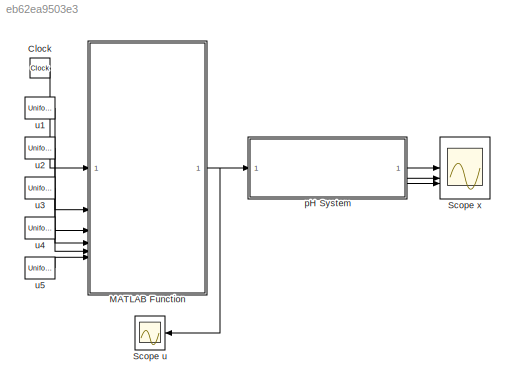
MODEL slx_eb62ea9503e3
KIND model
CONFIG AbsTol = auto
CONFIG EnableMultiTasking = off
CONFIG FixedStep = auto
CONFIG MaxStep = auto
CONFIG MinStep = auto
CONFIG RelTol = 1e-3
CONFIG SampleTimeConstraint = Unconstrained
CONFIG SolverName = ode45
CONFIG StartTime = 0.0
CONFIG StopTime = 120000
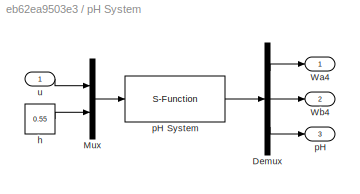
BLOCK [SubSystem]  pH System 
BLOCK [Constant]  pH System / h 
  Value = 0.55
BLOCK [Demux]  pH System /Demux
  Outputs = 3
BLOCK [Mux]  pH System /Mux
  DisplayOption = bar
  Inputs = 2
BLOCK [Outport]  pH System /Wa4
  VectorParamsAs1DForOutWhenUnconnected = off
BLOCK [Outport]  pH System /Wb4
  Port = 2
  VectorParamsAs1DForOutWhenUnconnected = off
BLOCK [Outport]  pH System /pH
  Port = 3
  VectorParamsAs1DForOutWhenUnconnected = off
BLOCK [S-Function]  pH System /pH System
  EnableBusSupport = off
  FunctionName = pH_sfun
  SFcnIsStateOwnerBlock = off
  SFunctionDeploymentMode = off
BLOCK [Inport]  pH System /u
BLOCK [Clock] Clock
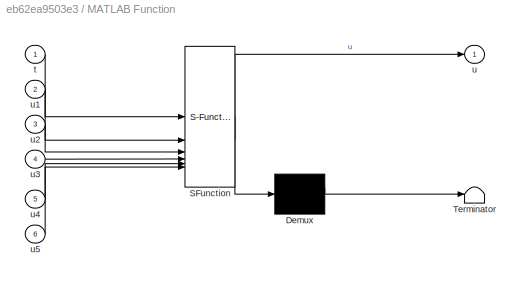
BLOCK [SubSystem] MATLAB Function
  ErrorFcn = Stateflow.Translate.translate
  PermitHierarchicalResolution = ExplicitOnly
  SFBlockType = MATLAB Function
  TreatAsAtomicUnit = on
BLOCK [Demux] MATLAB Function/ Demux 
  Outputs = 1
BLOCK [S-Function] MATLAB Function/ SFunction 
  EnableBusSupport = on
  FunctionName = sf_sfun
  PortCounts = [6 2]
  SFcnIsStateOwnerBlock = off
  SFunctionDeploymentMode = off
  Tag = Stateflow S-Function 2
BLOCK [Terminator] MATLAB Function/ Terminator 
BLOCK [Inport] MATLAB Function/t
BLOCK [Outport] MATLAB Function/u
  VectorParamsAs1DForOutWhenUnconnected = off
BLOCK [Inport] MATLAB Function/u1
  Port = 2
BLOCK [Inport] MATLAB Function/u2
  Port = 3
BLOCK [Inport] MATLAB Function/u3
  Port = 4
BLOCK [Inport] MATLAB Function/u4
  Port = 5
BLOCK [Inport] MATLAB Function/u5
  Port = 6
BLOCK [Scope] Scope u
  Floating = off
  NumInputPorts = 1
  ScopeSpecificationString = Simulink.scopes.TimeScopeBlockCfg('CurrentConfiguration', extmgr.ConfigurationSet(extmgr.Configuration('Core','General UI',true),extmgr.Configuration('Core','Source UI',true),extmgr.Configuration('Sources','WiredSimulink',true,'DataLoggingVariableName','u','DataLogging',true,'DataLoggingSaveFormat','StructureWithTime','SampleTime','5'),extmgr.Configuration('Visuals','Time Domain',true,'SerializedD...<+1554ch>
BLOCK [Scope] Scope x
  Floating = off
  NumInputPorts = 3
  ScopeSpecificationString = Simulink.scopes.TimeScopeBlockCfg('CurrentConfiguration', extmgr.ConfigurationSet(extmgr.Configuration('Core','General UI',true),extmgr.Configuration('Core','Source UI',true),extmgr.Configuration('Sources','WiredSimulink',true,'DataLoggingVariableName','x','DataLogging',true,'DataLoggingSaveFormat','StructureWithTime','SampleTime','5'),extmgr.Configuration('Visuals','Time Domain',true,'SerializedD...<+2860ch>
BLOCK [UniformRandomNumber] u1
  Maximum = 50
  Minimum = 0
  SampleTime = 300
  Seed = 1
BLOCK [UniformRandomNumber] u2
  Maximum = 50
  Minimum = 0
  SampleTime = 150
  Seed = 1
BLOCK [UniformRandomNumber] u3
  Maximum = 50
  Minimum = 0
  SampleTime = 75
  Seed = 1
BLOCK [UniformRandomNumber] u4
  Maximum = 50
  Minimum = 0
  SampleTime = 20
  Seed = 1
BLOCK [UniformRandomNumber] u5
  Maximum = 50
  Minimum = 0
  SampleTime = 5
  Seed = 1
LINE  pH System / h :1 ->  pH System /Mux:2
LINE  pH System /Demux:1 ->  pH System /Wa4:1
LINE  pH System /Demux:2 ->  pH System /Wb4:1
LINE  pH System /Demux:3 ->  pH System /pH:1
LINE  pH System /Mux:1 ->  pH System /pH System:1
LINE  pH System /pH System:1 ->  pH System /Demux:1
LINE  pH System /u:1 ->  pH System /Mux:1
LINE  pH System :1 -> Scope x:1
LINE  pH System :2 -> Scope x:2
LINE  pH System :3 -> Scope x:3
LINE Clock:1 -> MATLAB Function:1
NET MATLAB Function:1 ->  pH System :1, Scope u:1
LINE u1:1 -> MATLAB Function:2
LINE u2:1 -> MATLAB Function:3
LINE u3:1 -> MATLAB Function:4
LINE u4:1 -> MATLAB Function:5
LINE u5:1 -> MATLAB Function:6
note: NET lines group one-source signal fan-out (src -> all destinations, sorted); 1:1 wires keep LINE
CHART MATLAB Function states=1 transitions=1
  STATE_LABEL 'eML_blk_kernel()'
  STATE_LABEL 'SCRIPT:\nfunction u = choose_signal(t,u1,u2,u3,u4,u5)\nu_opts = [u1,u2,u3,u4,u5];\nsim_time = 120000;\nstops = 0:round(sim_time/numel(u_opts)):sim_time;\nu = u_opts(1);\nfor i = 1:numel(stops)-1\n    if (t >= stops(i)) && (t <= stops(i+1))\n        u = u_opts(i);\n        break;\n    end\nend\n'
CHART  states=0 transitions=0
